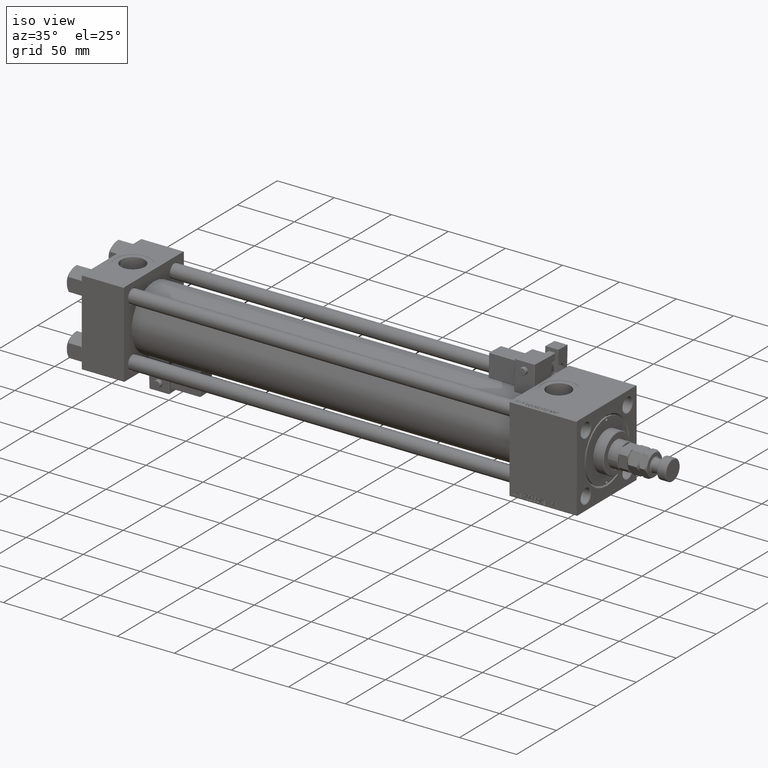
[diagram: clean part render]
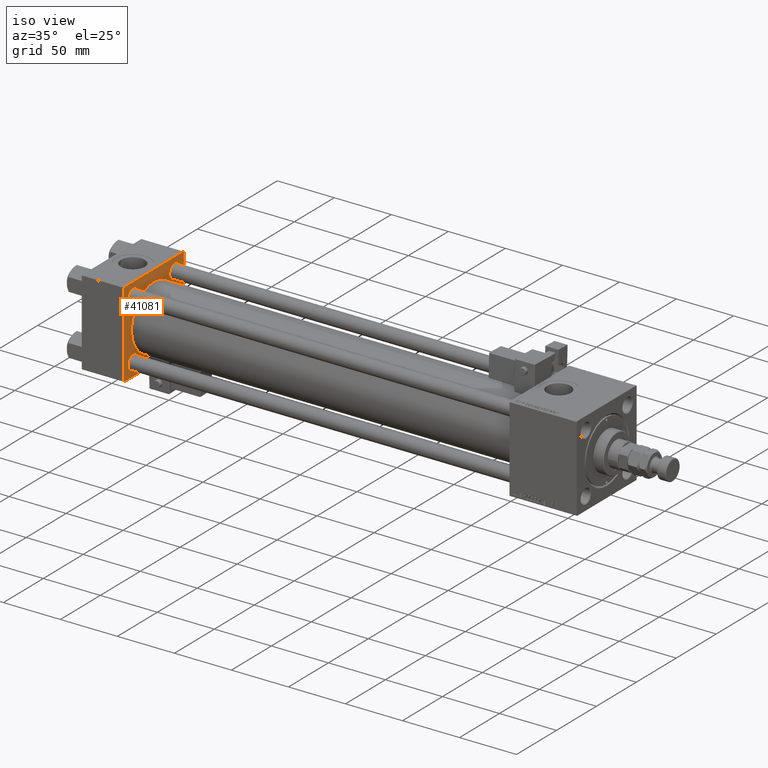
[diagram: same view with one face highlighted and labeled with its STEP entity id]
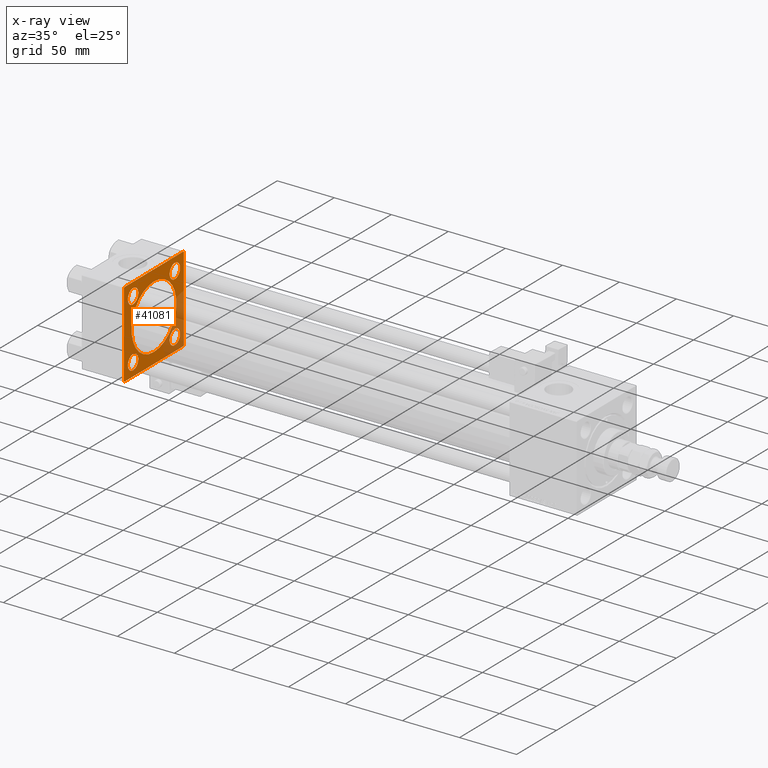
[diagram: x-ray of the same camera — body ghosted, the highlighted face saturated]
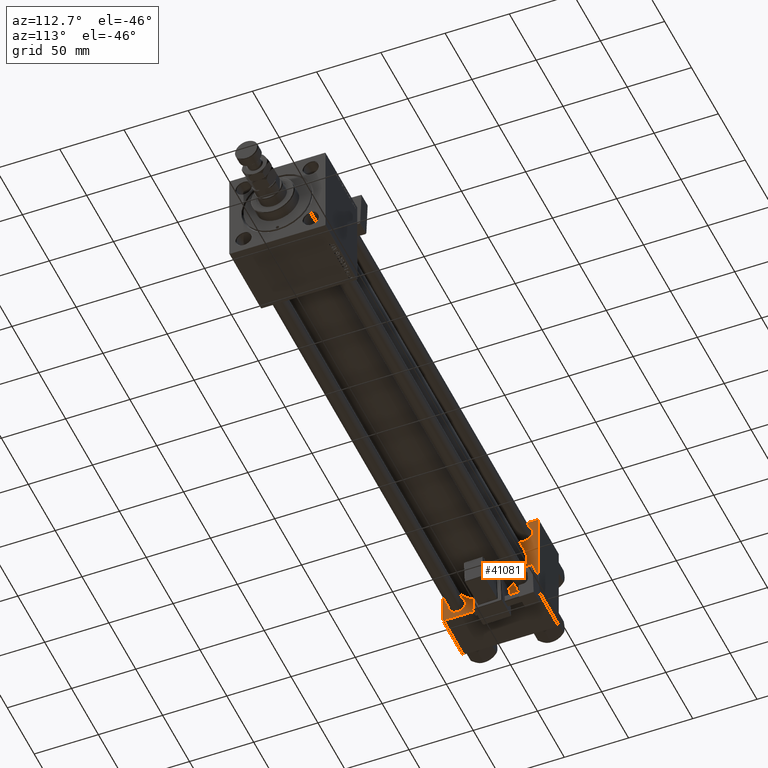
[diagram: same view with one face highlighted and labeled with its STEP entity id]
A machine part, iso view. The second image highlights one B-rep face of the part: STEP entity #41081.
The next image is the same camera in x-ray: the body ghosted, the highlighted face saturated — about 22% of this face is hidden behind the body in this view.
A second angle (auxiliary view) of the same face is appended — the face is thin or edge-on in the first view.
In plain terms, the highlighted planar face has unit normal (-1, 0, 0).
Its self-contained STEP definition (entity closure, byte-faithful):
#96 = AXIS2_PLACEMENT_3D ( 'NONE', #11082, #6165, #23690 ) ;
#1290 = EDGE_CURVE ( 'NONE', #37489, #32717, #22885, .T. ) ;
#1365 = EDGE_CURVE ( 'NONE', #3629, #32717, #26202, .T. ) ;
#1495 = EDGE_CURVE ( 'NONE', #37489, #13049, #29709, .T. ) ;
#2711 = EDGE_LOOP ( 'NONE', ( #46824, #48830 ) ) ;
#3165 = LINE ( 'NONE', #7005, #40907 ) ;
#3498 = VERTEX_POINT ( 'NONE', #40393 ) ;
#3629 = VERTEX_POINT ( 'NONE', #10515 ) ;
#3906 = AXIS2_PLACEMENT_3D ( 'NONE', #51160, #47032, #9476 ) ;
#3919 = EDGE_LOOP ( 'NONE', ( #14747, #41169 ) ) ;
#4085 = DIRECTION ( 'NONE',  ( 0.000000000000000000, 0.000000000000000000, 1.000000000000000000 ) ) ;
#4243 = VECTOR ( 'NONE', #35506, 1000.000000000000000 ) ;
#5440 = CARTESIAN_POINT ( 'NONE',  ( 37.00000000000000000, -26.14999999999999147, -32.65000000000001279 ) ) ;
#5947 = DIRECTION ( 'NONE',  ( -1.000000000000000000, 0.000000000000000000, -0.000000000000000000 ) ) ;
#6165 = DIRECTION ( 'NONE',  ( -1.000000000000000000, 0.000000000000000000, -0.000000000000000000 ) ) ;
#6561 = CARTESIAN_POINT ( 'NONE',  ( 37.00000000000000000, -37.00000000000002132, -37.50000000000000711 ) ) ;
#6566 = EDGE_CURVE ( 'NONE', #44611, #11108, #29013, .T. ) ;
#6579 = VERTEX_POINT ( 'NONE', #28674 ) ;
#7005 = CARTESIAN_POINT ( 'NONE',  ( 37.00000000000000000, -37.50000000000000711, 37.49999999999999289 ) ) ;
#7499 = CARTESIAN_POINT ( 'NONE',  ( 37.00000000000000000, 26.14999999999999858, 19.65000000000005187 ) ) ;
#8064 = VERTEX_POINT ( 'NONE', #40629 ) ;
#8295 = CIRCLE ( 'NONE', #3906, 6.499999999999946709 ) ;
#8308 = ORIENTED_EDGE ( 'NONE', *, *, #44540, .T. ) ;
#8622 = CARTESIAN_POINT ( 'NONE',  ( 37.00000000000000000, 36.99999999999999289, 37.50000000000000000 ) ) ;
#8869 = CARTESIAN_POINT ( 'NONE',  ( 37.00000000000000000, 36.99999999999999289, 37.50000000000000000 ) ) ;
#9251 = CARTESIAN_POINT ( 'NONE',  ( 37.00000000000000000, -26.14999999999999147, -26.15000000000000924 ) ) ;
#9258 = VERTEX_POINT ( 'NONE', #35714 ) ;
#9275 = DIRECTION ( 'NONE',  ( 1.000000000000000000, -0.000000000000000000, 0.000000000000000000 ) ) ;
#9384 = VERTEX_POINT ( 'NONE', #20076 ) ;
#9476 = DIRECTION ( 'NONE',  ( 0.000000000000000000, 0.000000000000000000, 1.000000000000000000 ) ) ;
#9729 = EDGE_CURVE ( 'NONE', #35397, #34003, #49257, .T. ) ;
#9788 = DIRECTION ( 'NONE',  ( 0.000000000000000000, 0.000000000000000000, 1.000000000000000000 ) ) ;
#10375 = VECTOR ( 'NONE', #25319, 1000.000000000000114 ) ;
#10515 = CARTESIAN_POINT ( 'NONE',  ( 37.00000000000000000, 36.99999999999997868, -37.50000000000000000 ) ) ;
#10888 = EDGE_CURVE ( 'NONE', #3498, #9384, #31772, .T. ) ;
#11082 = CARTESIAN_POINT ( 'NONE',  ( 37.00000000000000000, 26.14999999999999858, -26.15000000000000213 ) ) ;
#11108 = VERTEX_POINT ( 'NONE', #35443 ) ;
#11325 = DIRECTION ( 'NONE',  ( -1.000000000000000000, 0.000000000000000000, -0.000000000000000000 ) ) ;
#11388 = DIRECTION ( 'NONE',  ( 0.000000000000000000, -1.000000000000000000, -9.251858538542972814E-17 ) ) ;
#11473 = DIRECTION ( 'NONE',  ( 0.000000000000000000, 0.7071067811865524577, -0.7071067811865426878 ) ) ;
#11710 = DIRECTION ( 'NONE',  ( -0.000000000000000000, -0.7071067811865474617, -0.7071067811865474617 ) ) ;
#12297 = EDGE_LOOP ( 'NONE', ( #21731, #29362 ) ) ;
#12605 = EDGE_CURVE ( 'NONE', #23801, #19704, #15551, .T. ) ;
#13049 = VERTEX_POINT ( 'NONE', #8622 ) ;
#13325 = DIRECTION ( 'NONE',  ( -1.000000000000000000, 0.000000000000000000, -0.000000000000000000 ) ) ;
#13578 = DIRECTION ( 'NONE',  ( -0.000000000000000000, 0.7071067811865474617, 0.7071067811865474617 ) ) ;
#14152 = CIRCLE ( 'NONE', #41295, 6.500000000000002665 ) ;
#14160 = EDGE_LOOP ( 'NONE', ( #30508, #24391, #53853, #20968, #8308, #29575, #34699, #16143 ) ) ;
#14747 = ORIENTED_EDGE ( 'NONE', *, *, #10888, .F. ) ;
#14971 = CIRCLE ( 'NONE', #96, 6.499999999999946709 ) ;
#15168 = FACE_BOUND ( 'NONE', #3919, .T. ) ;
#15551 = LINE ( 'NONE', #49015, #51989 ) ;
#15710 = CARTESIAN_POINT ( 'NONE',  ( 37.00000000000000000, 0.000000000000000000, 0.000000000000000000 ) ) ;
#15905 = ORIENTED_EDGE ( 'NONE', *, *, #53497, .T. ) ;
#16143 = ORIENTED_EDGE ( 'NONE', *, *, #26139, .T. ) ;
#16159 = AXIS2_PLACEMENT_3D ( 'NONE', #49821, #32263, #24848 ) ;
#16264 = CARTESIAN_POINT ( 'NONE',  ( 37.00000000000000000, -37.50000000000000711, 36.99999999999999289 ) ) ;
#16442 = AXIS2_PLACEMENT_3D ( 'NONE', #28408, #20445, #24551 ) ;
#17231 = CARTESIAN_POINT ( 'NONE',  ( 36.99999999999997868, -2.602085213965210642E-15, 0.000000000000000000 ) ) ;
#17440 = ORIENTED_EDGE ( 'NONE', *, *, #45566, .T. ) ;
#17758 = EDGE_CURVE ( 'NONE', #3629, #9258, #41539, .T. ) ;
#19704 = VERTEX_POINT ( 'NONE', #16264 ) ;
#19839 = LINE ( 'NONE', #28615, #27307 ) ;
#20076 = CARTESIAN_POINT ( 'NONE',  ( 36.99999999999997868, 8.269258236473784371E-16, -28.00000000000000000 ) ) ;
#20445 = DIRECTION ( 'NONE',  ( 1.000000000000000000, -0.000000000000000000, 0.000000000000000000 ) ) ;
#20968 = ORIENTED_EDGE ( 'NONE', *, *, #1495, .T. ) ;
#21731 = ORIENTED_EDGE ( 'NONE', *, *, #6566, .T. ) ;
#22885 = LINE ( 'NONE', #26742, #4243 ) ;
#23690 = DIRECTION ( 'NONE',  ( 0.000000000000000000, 0.000000000000000000, 1.000000000000000000 ) ) ;
#23801 = VERTEX_POINT ( 'NONE', #36982 ) ;
#23929 = PLANE ( 'NONE',  #52569 ) ;
#24003 = DIRECTION ( 'NONE',  ( -1.000000000000000000, 0.000000000000000000, -0.000000000000000000 ) ) ;
#24198 = FACE_BOUND ( 'NONE', #37801, .T. ) ;
#24263 = CARTESIAN_POINT ( 'NONE',  ( 37.00000000000000000, 37.49999999999999289, -37.50000000000000000 ) ) ;
#24391 = ORIENTED_EDGE ( 'NONE', *, *, #1365, .T. ) ;
#24551 = DIRECTION ( 'NONE',  ( 0.000000000000000000, 0.000000000000000000, 1.000000000000000000 ) ) ;
#24559 = DIRECTION ( 'NONE',  ( -1.000000000000000000, 0.000000000000000000, -0.000000000000000000 ) ) ;
#24848 = DIRECTION ( 'NONE',  ( 0.000000000000000000, 0.000000000000000000, 1.000000000000000000 ) ) ;
#24919 = CIRCLE ( 'NONE', #42405, 6.500000000000002665 ) ;
#25319 = DIRECTION ( 'NONE',  ( 0.000000000000000000, -0.7071067811865474617, 0.7071067811865474617 ) ) ;
#25607 = EDGE_CURVE ( 'NONE', #9384, #3498, #46216, .T. ) ;
#26139 = EDGE_CURVE ( 'NONE', #6579, #9258, #39739, .T. ) ;
#26202 = LINE ( 'NONE', #51156, #39277 ) ;
#26666 = VECTOR ( 'NONE', #11388, 1000.000000000000000 ) ;
#26742 = CARTESIAN_POINT ( 'NONE',  ( 37.00000000000000000, 37.49999999999999289, 37.50000000000000000 ) ) ;
#27307 = VECTOR ( 'NONE', #54117, 1000.000000000000000 ) ;
#28130 = CARTESIAN_POINT ( 'NONE',  ( 37.00000000000000000, -26.14999999999999147, 26.15000000000000924 ) ) ;
#28408 = CARTESIAN_POINT ( 'NONE',  ( 36.99999999999997868, -2.602085213965210642E-15, 0.000000000000000000 ) ) ;
#28615 = CARTESIAN_POINT ( 'NONE',  ( 37.00000000000000000, 37.49999999999999289, 37.50000000000000000 ) ) ;
#28674 = CARTESIAN_POINT ( 'NONE',  ( 37.00000000000000000, -37.50000000000000000, -37.00000000000003553 ) ) ;
#29013 = CIRCLE ( 'NONE', #40401, 6.500000000000008882 ) ;
#29362 = ORIENTED_EDGE ( 'NONE', *, *, #36043, .T. ) ;
#29454 = VERTEX_POINT ( 'NONE', #40488 ) ;
#29575 = ORIENTED_EDGE ( 'NONE', *, *, #12605, .T. ) ;
#29709 = LINE ( 'NONE', #8869, #10375 ) ;
#29985 = AXIS2_PLACEMENT_3D ( 'NONE', #38552, #13325, #51442 ) ;
#30508 = ORIENTED_EDGE ( 'NONE', *, *, #17758, .F. ) ;
#31029 = EDGE_CURVE ( 'NONE', #19704, #6579, #3165, .T. ) ;
#31772 = CIRCLE ( 'NONE', #36167, 28.00000000000000000 ) ;
#32263 = DIRECTION ( 'NONE',  ( -1.000000000000000000, 0.000000000000000000, -0.000000000000000000 ) ) ;
#32717 = VERTEX_POINT ( 'NONE', #45642 ) ;
#33875 = ORIENTED_EDGE ( 'NONE', *, *, #54161, .T. ) ;
#34003 = VERTEX_POINT ( 'NONE', #7499 ) ;
#34699 = ORIENTED_EDGE ( 'NONE', *, *, #31029, .T. ) ;
#34859 = EDGE_LOOP ( 'NONE', ( #15905, #17440 ) ) ;
#35397 = VERTEX_POINT ( 'NONE', #36439 ) ;
#35443 = CARTESIAN_POINT ( 'NONE',  ( 37.00000000000000000, -26.14999999999999147, 32.65000000000001990 ) ) ;
#35506 = DIRECTION ( 'NONE',  ( 0.000000000000000000, 0.000000000000000000, -1.000000000000000000 ) ) ;
#35714 = CARTESIAN_POINT ( 'NONE',  ( 37.00000000000000000, -37.00000000000002132, -37.50000000000000711 ) ) ;
#36043 = EDGE_CURVE ( 'NONE', #11108, #44611, #42731, .T. ) ;
#36167 = AXIS2_PLACEMENT_3D ( 'NONE', #17231, #9275, #4085 ) ;
#36254 = DIRECTION ( 'NONE',  ( -1.000000000000000000, 0.000000000000000000, -0.000000000000000000 ) ) ;
#36439 = CARTESIAN_POINT ( 'NONE',  ( 37.00000000000000000, 26.14999999999999858, 32.64999999999995595 ) ) ;
#36982 = CARTESIAN_POINT ( 'NONE',  ( 37.00000000000000000, -37.00000000000000711, 37.49999999999999289 ) ) ;
#37472 = AXIS2_PLACEMENT_3D ( 'NONE', #45397, #24559, #53920 ) ;
#37489 = VERTEX_POINT ( 'NONE', #46153 ) ;
#37801 = EDGE_LOOP ( 'NONE', ( #47559, #33875 ) ) ;
#38201 = VERTEX_POINT ( 'NONE', #5440 ) ;
#38552 = CARTESIAN_POINT ( 'NONE',  ( 37.00000000000000000, 26.14999999999999858, 26.15000000000000213 ) ) ;
#39277 = VECTOR ( 'NONE', #13578, 1000.000000000000114 ) ;
#39435 = VERTEX_POINT ( 'NONE', #48263 ) ;
#39739 = LINE ( 'NONE', #6561, #50650 ) ;
#40393 = CARTESIAN_POINT ( 'NONE',  ( 36.99999999999997868, -2.602085213965210642E-15, 28.00000000000000000 ) ) ;
#40401 = AXIS2_PLACEMENT_3D ( 'NONE', #28130, #24003, #49526 ) ;
#40488 = CARTESIAN_POINT ( 'NONE',  ( 37.00000000000000000, 26.14999999999999858, -32.64999999999994884 ) ) ;
#40629 = CARTESIAN_POINT ( 'NONE',  ( 37.00000000000000000, -26.14999999999999147, -19.65000000000000924 ) ) ;
#40637 = DIRECTION ( 'NONE',  ( 0.000000000000000000, 0.000000000000000000, 1.000000000000000000 ) ) ;
#40727 = DIRECTION ( 'NONE',  ( 0.000000000000000000, 9.251858538542971581E-17, -1.000000000000000000 ) ) ;
#40907 = VECTOR ( 'NONE', #40727, 1000.000000000000000 ) ;
#41081 = ADVANCED_FACE ( 'NONE', ( #24198, #49173, #48627, #45309, #15168, #52475 ), #23929, .F. ) ;
#41169 = ORIENTED_EDGE ( 'NONE', *, *, #25607, .F. ) ;
#41295 = AXIS2_PLACEMENT_3D ( 'NONE', #9251, #5947, #9788 ) ;
#41539 = LINE ( 'NONE', #24263, #26666 ) ;
#42024 = CARTESIAN_POINT ( 'NONE',  ( 37.00000000000000000, -26.14999999999999147, 19.65000000000000213 ) ) ;
#42405 = AXIS2_PLACEMENT_3D ( 'NONE', #45012, #36254, #40637 ) ;
#42731 = CIRCLE ( 'NONE', #37472, 6.500000000000008882 ) ;
#43307 = CIRCLE ( 'NONE', #16159, 6.499999999999946709 ) ;
#44013 = EDGE_CURVE ( 'NONE', #38201, #8064, #14152, .T. ) ;
#44540 = EDGE_CURVE ( 'NONE', #13049, #23801, #19839, .T. ) ;
#44611 = VERTEX_POINT ( 'NONE', #42024 ) ;
#45012 = CARTESIAN_POINT ( 'NONE',  ( 37.00000000000000000, -26.14999999999999147, -26.15000000000000924 ) ) ;
#45038 = DIRECTION ( 'NONE',  ( -0.000000000000000000, 0.000000000000000000, 1.000000000000000000 ) ) ;
#45309 = FACE_BOUND ( 'NONE', #2711, .T. ) ;
#45397 = CARTESIAN_POINT ( 'NONE',  ( 37.00000000000000000, -26.14999999999999147, 26.15000000000000924 ) ) ;
#45566 = EDGE_CURVE ( 'NONE', #39435, #29454, #14971, .T. ) ;
#45642 = CARTESIAN_POINT ( 'NONE',  ( 37.00000000000000000, 37.49999999999999289, -36.99999999999998579 ) ) ;
#46153 = CARTESIAN_POINT ( 'NONE',  ( 37.00000000000000000, 37.49999999999999289, 37.00000000000000000 ) ) ;
#46216 = CIRCLE ( 'NONE', #16442, 28.00000000000000000 ) ;
#46824 = ORIENTED_EDGE ( 'NONE', *, *, #53609, .T. ) ;
#47032 = DIRECTION ( 'NONE',  ( -1.000000000000000000, 0.000000000000000000, -0.000000000000000000 ) ) ;
#47559 = ORIENTED_EDGE ( 'NONE', *, *, #44013, .T. ) ;
#48263 = CARTESIAN_POINT ( 'NONE',  ( 37.00000000000000000, 26.14999999999999858, -19.65000000000005542 ) ) ;
#48627 = FACE_BOUND ( 'NONE', #12297, .T. ) ;
#48830 = ORIENTED_EDGE ( 'NONE', *, *, #9729, .T. ) ;
#49015 = CARTESIAN_POINT ( 'NONE',  ( 37.00000000000000000, -37.50000000000000711, 36.99999999999999289 ) ) ;
#49173 = FACE_BOUND ( 'NONE', #34859, .T. ) ;
#49257 = CIRCLE ( 'NONE', #29985, 6.499999999999946709 ) ;
#49526 = DIRECTION ( 'NONE',  ( 0.000000000000000000, 0.000000000000000000, 1.000000000000000000 ) ) ;
#49821 = CARTESIAN_POINT ( 'NONE',  ( 37.00000000000000000, 26.14999999999999858, -26.15000000000000213 ) ) ;
#50650 = VECTOR ( 'NONE', #11473, 1000.000000000000000 ) ;
#51156 = CARTESIAN_POINT ( 'NONE',  ( 37.00000000000000000, 37.49999999999999289, -36.99999999999998579 ) ) ;
#51160 = CARTESIAN_POINT ( 'NONE',  ( 37.00000000000000000, 26.14999999999999858, 26.15000000000000213 ) ) ;
#51442 = DIRECTION ( 'NONE',  ( 0.000000000000000000, 0.000000000000000000, 1.000000000000000000 ) ) ;
#51989 = VECTOR ( 'NONE', #11710, 1000.000000000000114 ) ;
#52475 = FACE_OUTER_BOUND ( 'NONE', #14160, .T. ) ;
#52569 = AXIS2_PLACEMENT_3D ( 'NONE', #15710, #11325, #45038 ) ;
#53497 = EDGE_CURVE ( 'NONE', #29454, #39435, #43307, .T. ) ;
#53609 = EDGE_CURVE ( 'NONE', #34003, #35397, #8295, .T. ) ;
#53853 = ORIENTED_EDGE ( 'NONE', *, *, #1290, .F. ) ;
#53920 = DIRECTION ( 'NONE',  ( 0.000000000000000000, 0.000000000000000000, 1.000000000000000000 ) ) ;
#54117 = DIRECTION ( 'NONE',  ( 0.000000000000000000, -1.000000000000000000, -9.251858538542971581E-17 ) ) ;
#54161 = EDGE_CURVE ( 'NONE', #8064, #38201, #24919, .T. ) ;